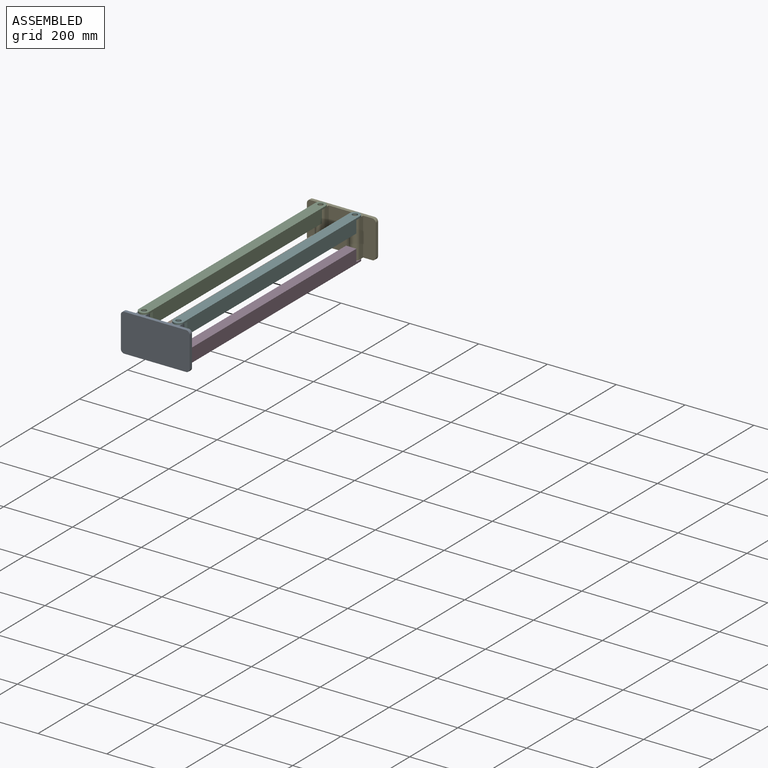
[diagram: assembled view]
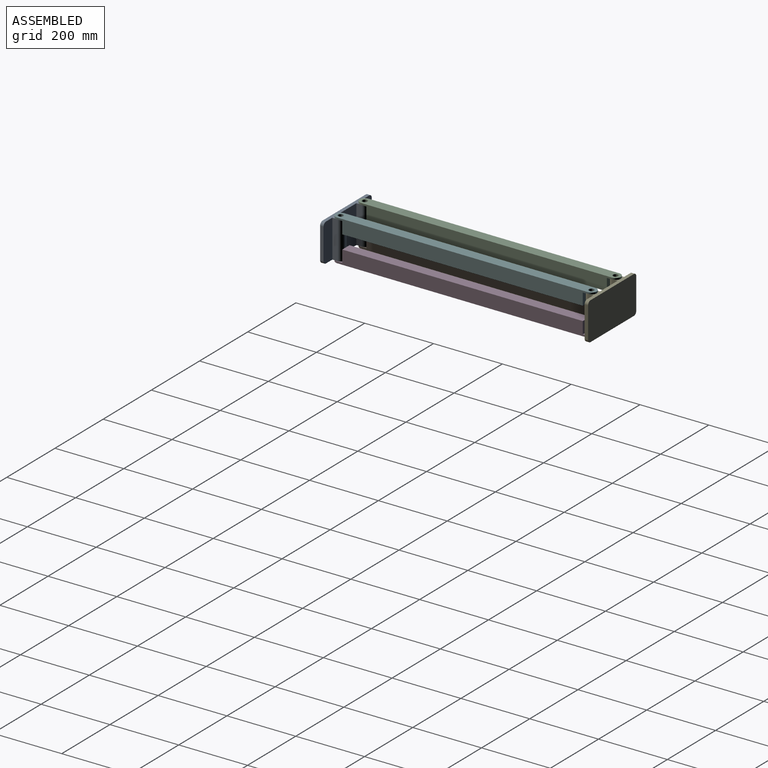
[diagram: assembled view, second angle]
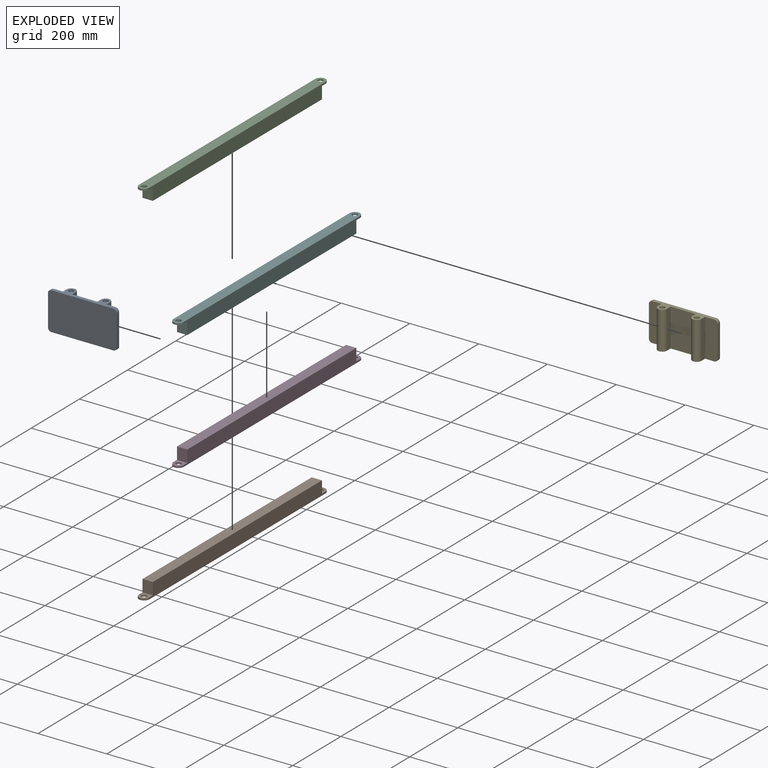
[diagram: exploded view]
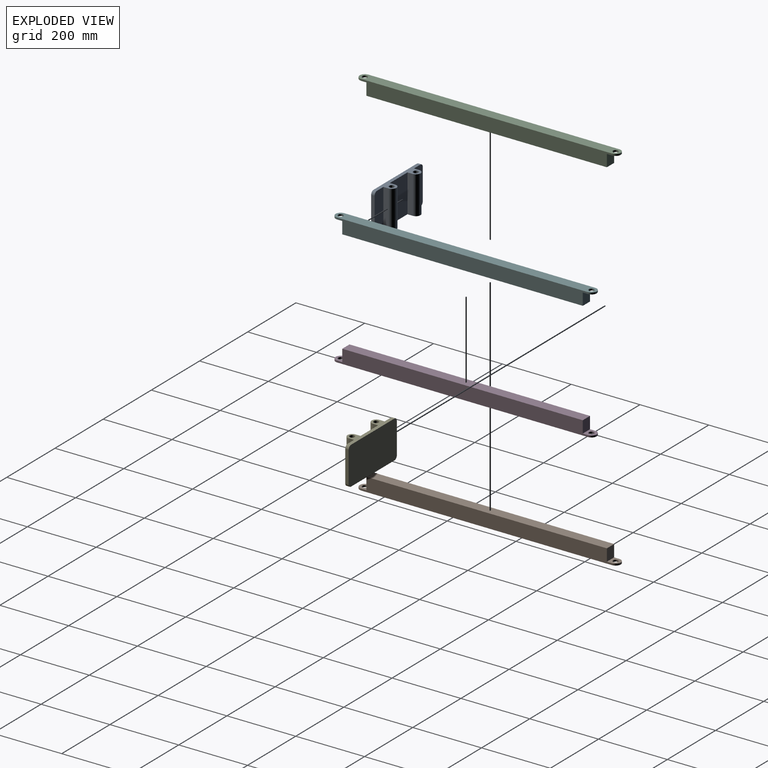
[diagram: exploded view, second angle]
ASSEMBLY  parts=6 mates=8
PART A: 20 faces, bbox 110x200x38.5 mm
  f0: plane 110x73mm, normal (0,0,1), area 8030mm2, adj f2,f6,f13,f16
  f1: plane 110x36.5mm, normal (0,0,1), area 3972.1mm2, adj f2,f6,f7,f8,f9,f15
  f2: plane 180x38.5mm, normal (1,0,0), area 2829.1mm2, adj f0,f1,f3,f9,f10,f11,f12,f13
  f3: cylinder r=10mm len=10mm, axis (0,0,-1), area 157.1mm2, adj f2,f4,f10,f11
  f4: plane 90x10mm, normal (0,1,0), area 900mm2, adj f3,f5,f10,f11
  f5: cylinder r=10mm len=10mm, axis (0,0,-1), area 157.1mm2, adj f4,f6,f10,f11
  f6: plane 180x38.5mm, normal (-1,0,0), area 2829.1mm2, adj f0,f1,f5,f7,f10,f11,f12,f13
  f7: cylinder r=10mm len=10mm, axis (0,0,-1), area 157.1mm2, adj f1,f6,f8,f11
  f8: plane 90x10mm, normal (0,-1,0), area 900mm2, adj f1,f7,f9,f11
  f9: cylinder r=10mm len=10mm, axis (0,0,-1), area 157.1mm2, adj f1,f2,f8,f11
  f10: plane 110x36.5mm, normal (0,0,1), area 3972.1mm2, adj f2,f3,f4,f5,f6,f18
  f11: plane 200x110mm, normal (0,0,-1), area 21914.2mm2, adj f2,f3,f4,f5,f6,f7,f8,f9
  f12: cylinder r=13.5mm len=110mm, axis (-1,0,0), area 4665.3mm2, adj f2,f6,f13,f15
  f13: plane 110x15mm, normal (0,1,0), area 1650mm2, adj f0,f2,f6,f12
  f14: cylinder r=7.5mm len=110mm, axis (-1,0,0), area 5183.6mm2, adj f2,f6
  f15: plane 110x15mm, normal (0,-1,0), area 1650mm2, adj f1,f2,f6,f12
  f16: plane 110x15mm, normal (0,-1,0), area 1650mm2, adj f0,f2,f6,f17
  f17: cylinder r=13.5mm len=110mm, axis (-1,0,0), area 4665.3mm2, adj f2,f6,f16,f18
  f18: plane 110x15mm, normal (0,1,0), area 1650mm2, adj f2,f6,f10,f17
  f19: cylinder r=7.5mm len=110mm, axis (-1,0,0), area 5183.6mm2, adj f2,f6
PART B: 12 faces, bbox 30x760x40 mm
  f0: plane 35x30mm, normal (0,1,0), area 1050mm2, adj f2,f3,f5,f11
  f1: plane 35x30mm, normal (0,-1,0), area 1050mm2, adj f2,f3,f5,f8
  f2: plane 700x30mm, normal (0,0,-1), area 21000mm2, adj f0,f1,f3,f5
  f3: plane 730x40mm, normal (1,0,0), area 28150mm2, adj f0,f1,f2,f4,f6,f8,f9,f11
  f4: plane 760x30mm, normal (0,0,1), area 22253.4mm2, adj f3,f5,f6,f7,f9,f10
  f5: plane 730x40mm, normal (-1,0,0), area 28150mm2, adj f0,f1,f2,f4,f6,f8,f9,f11
  f6: cylinder r=15mm len=30mm, axis (0,0,1), area 235.6mm2, adj f3,f4,f5,f8
  f7: cylinder r=7.5mm len=15mm, axis (0,0,1), area 235.6mm2, adj f4,f8
  f8: plane 30x30mm, normal (0,0,-1), area 626.7mm2, adj f1,f3,f5,f6,f7
  f9: cylinder r=15mm len=30mm, axis (0,0,1), area 235.6mm2, adj f3,f4,f5,f11
  f10: cylinder r=7.5mm len=15mm, axis (0,0,1), area 235.6mm2, adj f4,f11
  f11: plane 30x30mm, normal (0,0,-1), area 626.7mm2, adj f0,f3,f5,f9,f10
PART C: same geometry as B
PART D: same geometry as B
PART E: same geometry as A
PART F: same geometry as B
PLACE A rot(axis=(-0.58,-0.58,-0.58),120deg) t=(-166.41,-1075.75,55.06)mm
PLACE B rot(axis=(-1,0,0),180deg) t=(-215.59,-685.75,15.06)mm
PLACE C rot(axis=(0,0,1),179.9deg) t=(-215.59,-685.75,95.06)mm
PLACE D rot(axis=(-1,0,0),180deg) t=(-115.59,-685.75,15.06)mm
PLACE E rot(axis=(0.58,0.58,-0.58),120deg) t=(-164.77,-295.75,55.06)mm fixed
PLACE F rot(axis=(0,0,1),179.9deg) t=(-115.59,-685.75,95.06)mm
MATE revolute A.f17 <-> D.f9  axis (0,0,-1) through (-116.41,-1050.75,0.06)mm
MATE revolute E.f17 <-> F.f6  axis (0,0,1) through (-114.77,-320.75,110.06)mm
MATE revolute C.f9 <-> A.f12  axis (0,0,-1) through (-216.41,-1050.75,110.06)mm
MATE revolute A.f12 <-> B.f9  axis (0,0,-1) through (-216.41,-1050.75,0.06)mm
MATE revolute B.f6 <-> E.f12  axis (0,0,1) through (-214.77,-320.75,0.06)mm
MATE revolute F.f9 <-> A.f17  axis (0,0,-1) through (-116.41,-1050.75,110.06)mm
MATE revolute C.f6 <-> E.f12  axis (0,0,-1) through (-214.77,-320.75,110.06)mm
MATE revolute E.f17 <-> D.f6  axis (0,0,-1) through (-114.77,-320.75,0.06)mm
